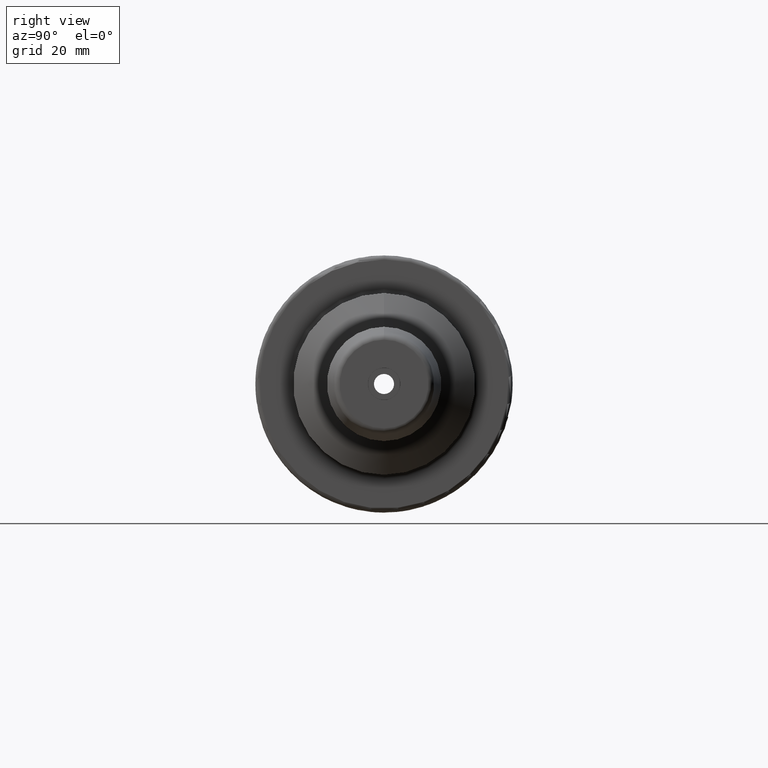
[diagram: clean part render]
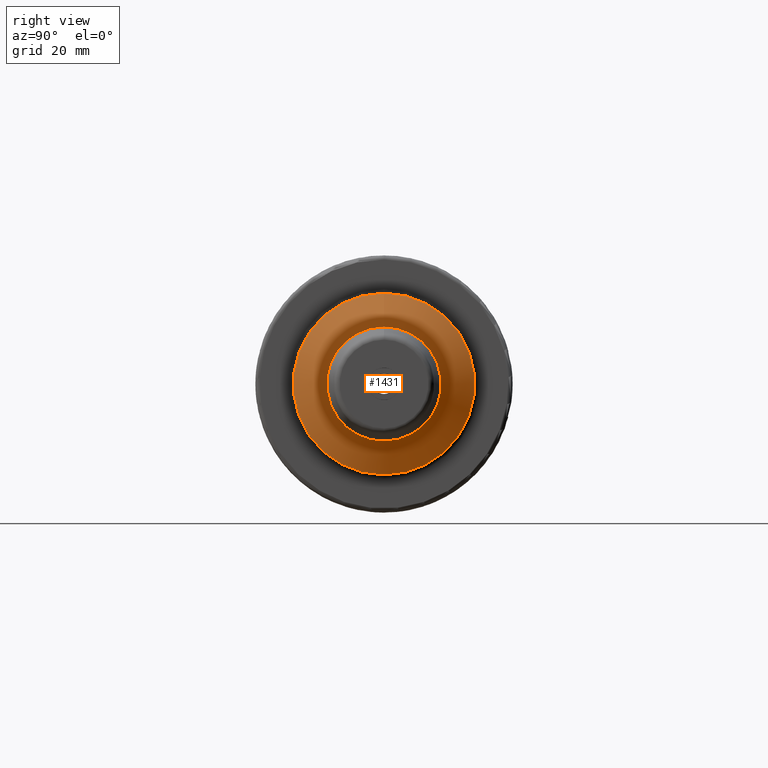
[diagram: same view with one face highlighted and labeled with its STEP entity id]
A machine part, right view. The second image highlights one B-rep face of the part: STEP entity #1431.
In plain terms, the highlighted conical surface has half-angle 60 deg.
Its self-contained STEP definition (entity closure, byte-faithful):
#183=FACE_OUTER_BOUND('',#278,.T.);
#278=EDGE_LOOP('',(#1080,#1081,#1082,#1083));
#365=LINE('',#2429,#438);
#438=VECTOR('',#1902,18.125);
#524=CIRCLE('',#1565,14.);
#535=CIRCLE('',#1582,22.25);
#620=VERTEX_POINT('',#2383);
#628=VERTEX_POINT('',#2410);
#779=EDGE_CURVE('',#620,#620,#524,.T.);
#791=EDGE_CURVE('',#628,#628,#535,.T.);
#799=EDGE_CURVE('',#620,#628,#365,.T.);
#1080=ORIENTED_EDGE('',*,*,#779,.F.);
#1081=ORIENTED_EDGE('',*,*,#799,.T.);
#1082=ORIENTED_EDGE('',*,*,#791,.T.);
#1083=ORIENTED_EDGE('',*,*,#799,.F.);
#1387=CONICAL_SURFACE('',#1592,18.125,1.0471975511966);
#1431=ADVANCED_FACE('',(#183),#1387,.T.);
#1565=AXIS2_PLACEMENT_3D('',#2385,#1842,#1843);
#1582=AXIS2_PLACEMENT_3D('',#2411,#1877,#1878);
#1592=AXIS2_PLACEMENT_3D('',#2428,#1900,#1901);
#1842=DIRECTION('center_axis',(1.,0.,0.));
#1843=DIRECTION('ref_axis',(0.,0.,-1.));
#1877=DIRECTION('center_axis',(1.,0.,0.));
#1878=DIRECTION('ref_axis',(0.,0.,-1.));
#1900=DIRECTION('center_axis',(-1.,0.,0.));
#1901=DIRECTION('ref_axis',(0.,0.,-1.));
#1902=DIRECTION('',(-0.500000000000001,-1.06057523872491E-16,0.866025403784438));
#2383=CARTESIAN_POINT('',(45.5,-1.71450551880629E-15,14.));
#2385=CARTESIAN_POINT('Origin',(45.5,0.,0.));
#2410=CARTESIAN_POINT('',(40.7368602791856,-2.72483912810286E-15,22.25));
#2411=CARTESIAN_POINT('Origin',(40.7368602791856,0.,0.));
#2428=CARTESIAN_POINT('Origin',(43.1184301395928,0.,0.));
#2429=CARTESIAN_POINT('',(43.1184301395928,-2.21967232345458E-15,18.125));